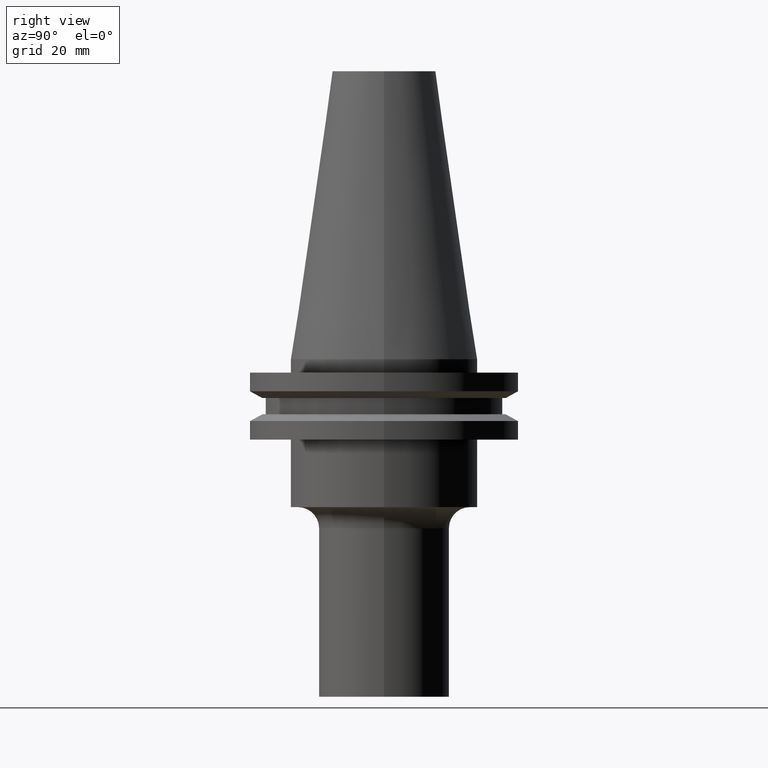
[diagram: clean part render]
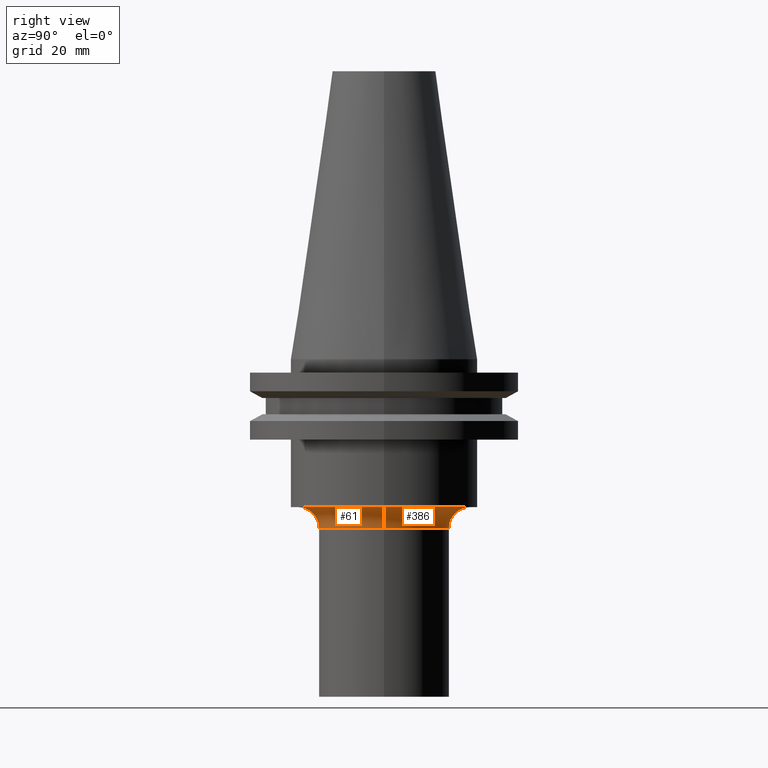
[diagram: same view with one multi-face feature highlighted, each face labeled with its STEP entity id]
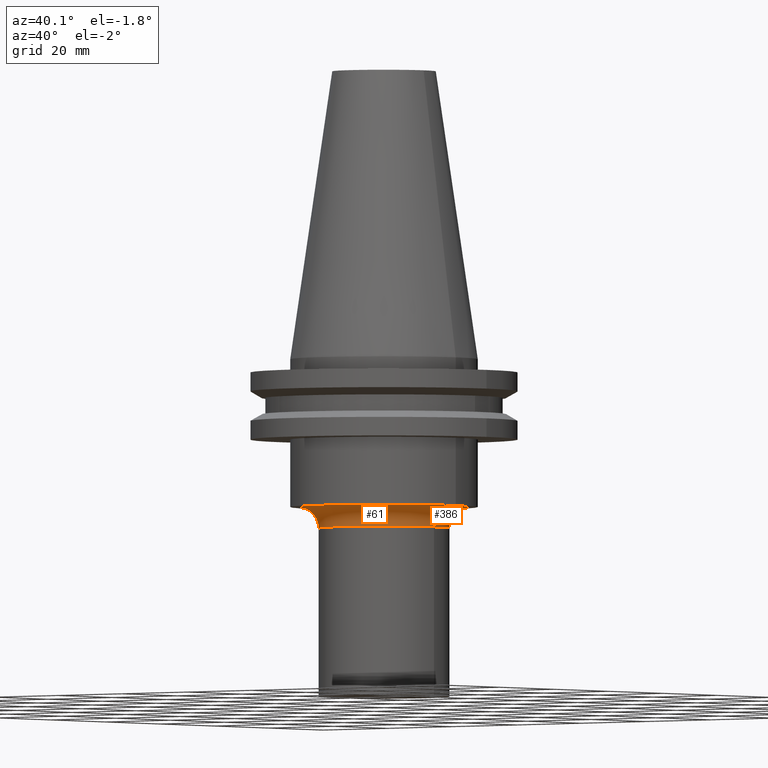
[diagram: same view with one multi-face feature highlighted, each face labeled with its STEP entity id]
A machine part, right view. The highlighted faces form ONE feature: a constant-radius fillet chain: 2 tangent blend faces with common blend radius 5 mm. The faces share edges in the B-rep.
A second angle (auxiliary view) of the same feature is appended — it is thin or edge-on in the first view.
Their STEP definitions:
[1] entity #61 (Torus):
#7 = DIRECTION ( 'NONE',  ( 1.224646799147353207E-16, 1.000000000000000000, 0.000000000000000000 ) ) ;
#9 = DIRECTION ( 'NONE',  ( -0.000000000000000000, -0.000000000000000000, 1.000000000000000000 ) ) ;
#15 = CARTESIAN_POINT ( 'NONE',  ( 0.000000000000000000, 0.000000000000000000, -40.04999999999999005 ) ) ;
#22 = DIRECTION ( 'NONE',  ( 0.000000000000000000, 0.000000000000000000, -1.000000000000000000 ) ) ;
#41 = AXIS2_PLACEMENT_3D ( 'NONE', #395, #562, #22 ) ;
#57 = AXIS2_PLACEMENT_3D ( 'NONE', #428, #65, #530 ) ;
#59 = CARTESIAN_POINT ( 'NONE',  ( -20.50000000000000000, 2.510525938252074481E-15, -40.04999999999999716 ) ) ;
#61 = ADVANCED_FACE ( 'NONE', ( #717 ), #682, .F. ) ;
#64 = CIRCLE ( 'NONE', #269, 5.000000000000000888 ) ;
#65 = DIRECTION ( 'NONE',  ( -0.000000000000000000, -0.000000000000000000, 1.000000000000000000 ) ) ;
#103 = VERTEX_POINT ( 'NONE', #665 ) ;
#105 = VERTEX_POINT ( 'NONE', #336 ) ;
#143 = AXIS2_PLACEMENT_3D ( 'NONE', #258, #612, #250 ) ;
#163 = CIRCLE ( 'NONE', #714, 15.50000000000000000 ) ;
#172 = ORIENTED_EDGE ( 'NONE', *, *, #526, .F. ) ;
#211 = EDGE_CURVE ( 'NONE', #103, #105, #163, .T. ) ;
#217 = VERTEX_POINT ( 'NONE', #319 ) ;
#238 = DIRECTION ( 'NONE',  ( -1.000000000000000000, 1.224646799147352714E-16, 0.000000000000000000 ) ) ;
#250 = DIRECTION ( 'NONE',  ( 1.000000000000000000, 0.000000000000000000, 0.000000000000000000 ) ) ;
#253 = DIRECTION ( 'NONE',  ( 1.000000000000000000, 0.000000000000000000, 0.000000000000000000 ) ) ;
#258 = CARTESIAN_POINT ( 'NONE',  ( 0.000000000000000000, 0.000000000000000000, -35.04999999999999716 ) ) ;
#264 = CARTESIAN_POINT ( 'NONE',  ( -20.50000000000000000, 2.510525938252074481E-15, -35.04999999999999716 ) ) ;
#269 = AXIS2_PLACEMENT_3D ( 'NONE', #59, #7, #238 ) ;
#319 = CARTESIAN_POINT ( 'NONE',  ( 20.50000000000000000, 0.000000000000000000, -35.04999999999999716 ) ) ;
#336 = CARTESIAN_POINT ( 'NONE',  ( 15.50000000000000000, 0.000000000000000000, -40.04999999999999005 ) ) ;
#352 = ORIENTED_EDGE ( 'NONE', *, *, #721, .F. ) ;
#372 = CIRCLE ( 'NONE', #41, 4.999999999999997335 ) ;
#395 = CARTESIAN_POINT ( 'NONE',  ( 20.50000000000000000, 0.000000000000000000, -40.04999999999999716 ) ) ;
#399 = ORIENTED_EDGE ( 'NONE', *, *, #211, .T. ) ;
#428 = CARTESIAN_POINT ( 'NONE',  ( 0.000000000000000000, 0.000000000000000000, -40.04999999999999716 ) ) ;
#467 = EDGE_LOOP ( 'NONE', ( #172, #517, #399, #352 ) ) ;
#517 = ORIENTED_EDGE ( 'NONE', *, *, #770, .T. ) ;
#526 = EDGE_CURVE ( 'NONE', #694, #217, #607, .T. ) ;
#530 = DIRECTION ( 'NONE',  ( 1.000000000000000000, 0.000000000000000000, 0.000000000000000000 ) ) ;
#562 = DIRECTION ( 'NONE',  ( 0.000000000000000000, -1.000000000000000000, 0.000000000000000000 ) ) ;
#607 = CIRCLE ( 'NONE', #143, 20.50000000000000000 ) ;
#612 = DIRECTION ( 'NONE',  ( -0.000000000000000000, -0.000000000000000000, 1.000000000000000000 ) ) ;
#665 = CARTESIAN_POINT ( 'NONE',  ( -15.50000000000000000, 1.898202538678397557E-15, -40.04999999999999005 ) ) ;
#682 = TOROIDAL_SURFACE ( 'NONE', #57, 20.50000000000000000, 4.999999999999999112 ) ;
#694 = VERTEX_POINT ( 'NONE', #264 ) ;
#714 = AXIS2_PLACEMENT_3D ( 'NONE', #15, #9, #253 ) ;
#717 = FACE_OUTER_BOUND ( 'NONE', #467, .T. ) ;
#721 = EDGE_CURVE ( 'NONE', #217, #105, #372, .T. ) ;
#770 = EDGE_CURVE ( 'NONE', #694, #103, #64, .T. ) ;
[2] entity #386 (Torus):
#4 = CIRCLE ( 'NONE', #140, 20.50000000000000000 ) ;
#7 = DIRECTION ( 'NONE',  ( 1.224646799147353207E-16, 1.000000000000000000, 0.000000000000000000 ) ) ;
#22 = DIRECTION ( 'NONE',  ( 0.000000000000000000, 0.000000000000000000, -1.000000000000000000 ) ) ;
#34 = CARTESIAN_POINT ( 'NONE',  ( 0.000000000000000000, 0.000000000000000000, -40.04999999999999005 ) ) ;
#41 = AXIS2_PLACEMENT_3D ( 'NONE', #395, #562, #22 ) ;
#47 = ORIENTED_EDGE ( 'NONE', *, *, #251, .T. ) ;
#59 = CARTESIAN_POINT ( 'NONE',  ( -20.50000000000000000, 2.510525938252074481E-15, -40.04999999999999716 ) ) ;
#64 = CIRCLE ( 'NONE', #269, 5.000000000000000888 ) ;
#88 = DIRECTION ( 'NONE',  ( 1.000000000000000000, 0.000000000000000000, 0.000000000000000000 ) ) ;
#94 = ORIENTED_EDGE ( 'NONE', *, *, #322, .F. ) ;
#103 = VERTEX_POINT ( 'NONE', #665 ) ;
#105 = VERTEX_POINT ( 'NONE', #336 ) ;
#140 = AXIS2_PLACEMENT_3D ( 'NONE', #287, #228, #400 ) ;
#217 = VERTEX_POINT ( 'NONE', #319 ) ;
#220 = TOROIDAL_SURFACE ( 'NONE', #260, 20.50000000000000000, 4.999999999999999112 ) ;
#227 = ORIENTED_EDGE ( 'NONE', *, *, #721, .T. ) ;
#228 = DIRECTION ( 'NONE',  ( -0.000000000000000000, -0.000000000000000000, 1.000000000000000000 ) ) ;
#238 = DIRECTION ( 'NONE',  ( -1.000000000000000000, 1.224646799147352714E-16, 0.000000000000000000 ) ) ;
#251 = EDGE_CURVE ( 'NONE', #105, #103, #439, .T. ) ;
#260 = AXIS2_PLACEMENT_3D ( 'NONE', #343, #506, #385 ) ;
#264 = CARTESIAN_POINT ( 'NONE',  ( -20.50000000000000000, 2.510525938252074481E-15, -35.04999999999999716 ) ) ;
#266 = AXIS2_PLACEMENT_3D ( 'NONE', #34, #731, #88 ) ;
#269 = AXIS2_PLACEMENT_3D ( 'NONE', #59, #7, #238 ) ;
#287 = CARTESIAN_POINT ( 'NONE',  ( 0.000000000000000000, 0.000000000000000000, -35.04999999999999716 ) ) ;
#290 = EDGE_LOOP ( 'NONE', ( #302, #94, #227, #47 ) ) ;
#299 = FACE_OUTER_BOUND ( 'NONE', #290, .T. ) ;
#302 = ORIENTED_EDGE ( 'NONE', *, *, #770, .F. ) ;
#319 = CARTESIAN_POINT ( 'NONE',  ( 20.50000000000000000, 0.000000000000000000, -35.04999999999999716 ) ) ;
#322 = EDGE_CURVE ( 'NONE', #217, #694, #4, .T. ) ;
#336 = CARTESIAN_POINT ( 'NONE',  ( 15.50000000000000000, 0.000000000000000000, -40.04999999999999005 ) ) ;
#343 = CARTESIAN_POINT ( 'NONE',  ( 0.000000000000000000, 0.000000000000000000, -40.04999999999999716 ) ) ;
#372 = CIRCLE ( 'NONE', #41, 4.999999999999997335 ) ;
#385 = DIRECTION ( 'NONE',  ( 1.000000000000000000, 0.000000000000000000, 0.000000000000000000 ) ) ;
#386 = ADVANCED_FACE ( 'NONE', ( #299 ), #220, .F. ) ;
#395 = CARTESIAN_POINT ( 'NONE',  ( 20.50000000000000000, 0.000000000000000000, -40.04999999999999716 ) ) ;
#400 = DIRECTION ( 'NONE',  ( 1.000000000000000000, 0.000000000000000000, 0.000000000000000000 ) ) ;
#439 = CIRCLE ( 'NONE', #266, 15.50000000000000000 ) ;
#506 = DIRECTION ( 'NONE',  ( -0.000000000000000000, -0.000000000000000000, 1.000000000000000000 ) ) ;
#562 = DIRECTION ( 'NONE',  ( 0.000000000000000000, -1.000000000000000000, 0.000000000000000000 ) ) ;
#665 = CARTESIAN_POINT ( 'NONE',  ( -15.50000000000000000, 1.898202538678397557E-15, -40.04999999999999005 ) ) ;
#694 = VERTEX_POINT ( 'NONE', #264 ) ;
#721 = EDGE_CURVE ( 'NONE', #217, #105, #372, .T. ) ;
#731 = DIRECTION ( 'NONE',  ( -0.000000000000000000, -0.000000000000000000, 1.000000000000000000 ) ) ;
#770 = EDGE_CURVE ( 'NONE', #694, #103, #64, .T. ) ;